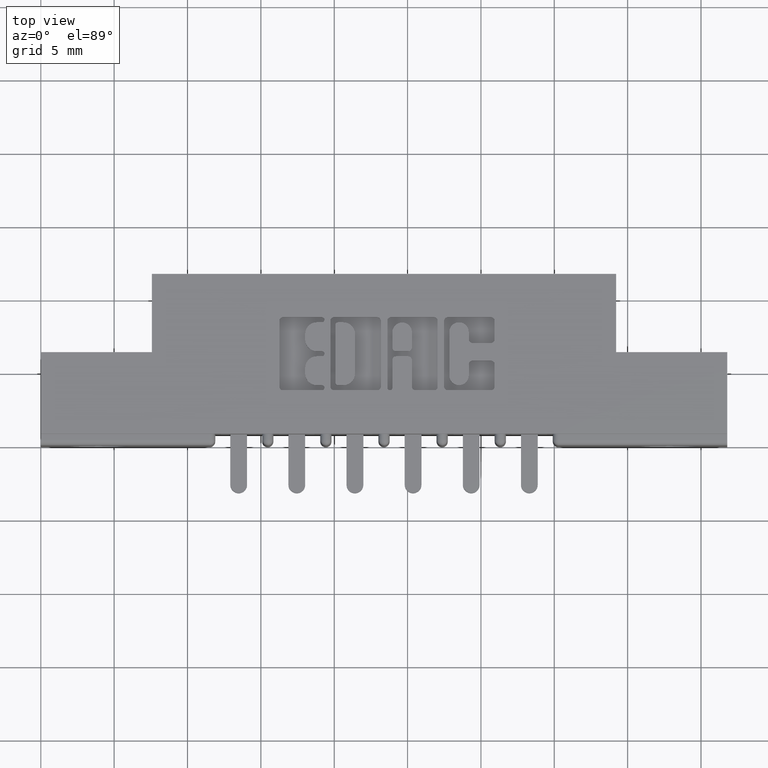
[diagram: clean part render]
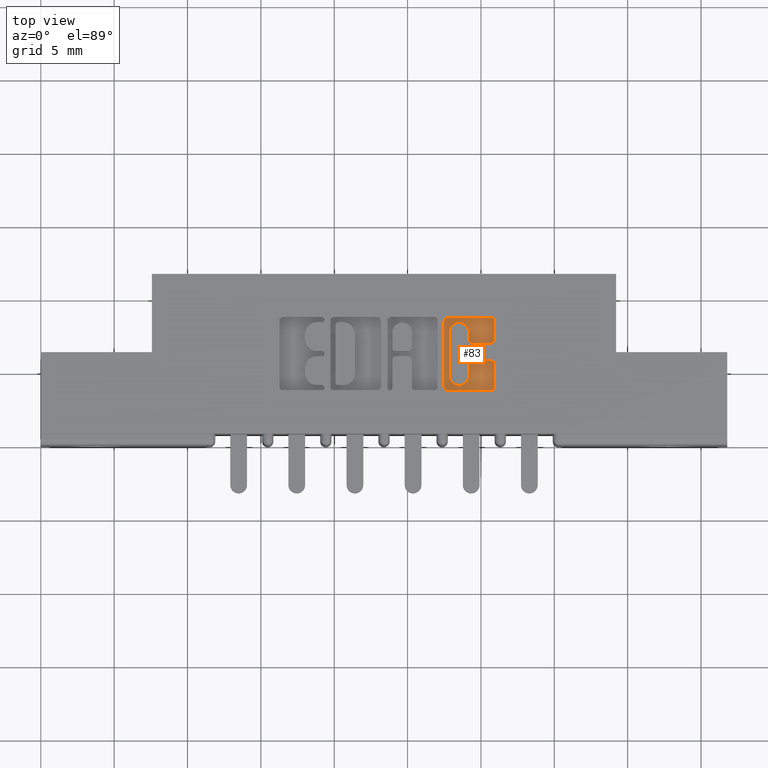
[diagram: same view with one face highlighted and labeled with its STEP entity id]
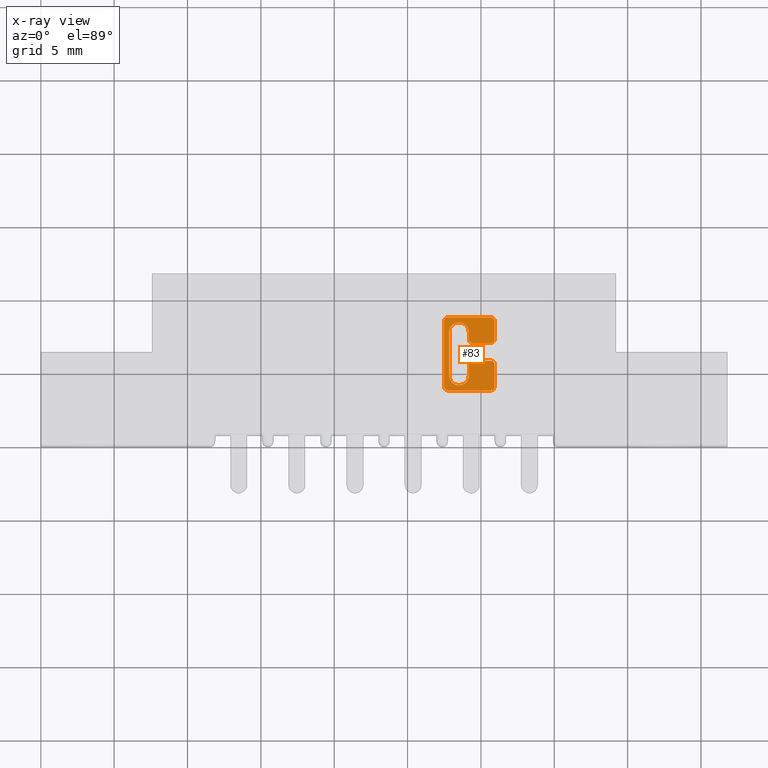
[diagram: x-ray of the same camera — body ghosted, the highlighted face saturated]
A machine part, top view. The second image highlights one B-rep face of the part: STEP entity #83.
The next image is the same camera in x-ray: the body ghosted, the highlighted face saturated — about 0% of this face is hidden behind the body in this view.
In plain terms, the highlighted planar face has unit normal (0, 0, 1).
Its self-contained STEP definition (entity closure, byte-faithful):
#19 = CARTESIAN_POINT ( 'NONE',  ( 1.082222383097458700, 0.3338410318342131000, -0.01000000000000000000 ) ) ;
#83 = ADVANCED_FACE ( 'NONE', ( #937 ), #6890, .T. ) ;
#126 = AXIS2_PLACEMENT_3D ( 'NONE', #6744, #1179, #381 ) ;
#132 = CIRCLE ( 'NONE', #8943, 0.02625691779517367100 ) ;
#195 = VECTOR ( 'NONE', #3073, 39.37007874015748100 ) ;
#381 = DIRECTION ( 'NONE',  ( 1.000000000000000000, 0.0000000000000000000, 0.0000000000000000000 ) ) ;
#706 = LINE ( 'NONE', #8245, #2575 ) ;
#937 = FACE_OUTER_BOUND ( 'NONE', #10017, .T. ) ;
#1121 = CARTESIAN_POINT ( 'NONE',  ( 1.148478156973165900, 0.2842718973050482000, -0.01000000000000000000 ) ) ;
#1179 = DIRECTION ( 'NONE',  ( -0.0000000000000000000, 0.0000000000000000000, 1.000000000000000000 ) ) ;
#1227 = CARTESIAN_POINT ( 'NONE',  ( 1.092038053301299400, 0.3338410318342131000, -0.01000000000000000000 ) ) ;
#1350 = EDGE_CURVE ( 'NONE', #11871, #8291, #3048, .T. ) ;
#1445 = EDGE_CURVE ( 'NONE', #3971, #6592, #9828, .T. ) ;
#1597 = VERTEX_POINT ( 'NONE', #11950 ) ;
#1608 = AXIS2_PLACEMENT_3D ( 'NONE', #5244, #2332, #5206 ) ;
#1677 = ORIENTED_EDGE ( 'NONE', *, *, #3145, .T. ) ;
#1750 = VERTEX_POINT ( 'NONE', #10198 ) ;
#1771 = VECTOR ( 'NONE', #6950, 39.37007874015748100 ) ;
#1878 = AXIS2_PLACEMENT_3D ( 'NONE', #1227, #8559, #9500 ) ;
#2047 = CARTESIAN_POINT ( 'NONE',  ( 1.217678631909940200, 0.0000000000000000000, -0.01000000000000000000 ) ) ;
#2103 = VERTEX_POINT ( 'NONE', #7295 ) ;
#2145 = EDGE_CURVE ( 'NONE', #2103, #9909, #11570, .T. ) ;
#2177 = VECTOR ( 'NONE', #8453, 39.37007874015748100 ) ;
#2194 = CARTESIAN_POINT ( 'NONE',  ( 0.0000000000000000000, 0.3436567020380540400, -0.01000000000000000000 ) ) ;
#2246 = CARTESIAN_POINT ( 'NONE',  ( 1.158293827176966900, 0.2170345564089725400, -0.01000000000000000000 ) ) ;
#2332 = DIRECTION ( 'NONE',  ( -0.0000000000000000000, 0.0000000000000000000, 1.000000000000000000 ) ) ;
#2365 = VECTOR ( 'NONE', #6825, 39.37007874015748100 ) ;
#2368 = EDGE_CURVE ( 'NONE', #1750, #5284, #3607, .T. ) ;
#2481 = CIRCLE ( 'NONE', #6602, 0.009815670203804980100 ) ;
#2575 = VECTOR ( 'NONE', #5510, 39.37007874015748100 ) ;
#2601 = DIRECTION ( 'NONE',  ( -0.0000000000000000000, 0.0000000000000000000, 1.000000000000000000 ) ) ;
#2725 = EDGE_CURVE ( 'NONE', #9079, #2103, #10852, .T. ) ;
#2768 = CARTESIAN_POINT ( 'NONE',  ( 0.0000000000000000000, 0.2268502266127605200, -0.01000000000000000000 ) ) ;
#2781 = ORIENTED_EDGE ( 'NONE', *, *, #6594, .T. ) ;
#2937 = CARTESIAN_POINT ( 'NONE',  ( 1.092038053301265200, 0.1571589681657929700, -0.01000000000000000000 ) ) ;
#2984 = ORIENTED_EDGE ( 'NONE', *, *, #1445, .T. ) ;
#3048 = LINE ( 'NONE', #10612, #1771 ) ;
#3072 = AXIS2_PLACEMENT_3D ( 'NONE', #10541, #5040, #11495 ) ;
#3073 = DIRECTION ( 'NONE',  ( -1.000000000000000000, 0.0000000000000000000, 0.0000000000000000000 ) ) ;
#3082 = CARTESIAN_POINT ( 'NONE',  ( 1.207862961706153100, 0.2170345564089734300, -0.01000000000000000000 ) ) ;
#3107 = CARTESIAN_POINT ( 'NONE',  ( 1.158293827176977400, 0.2744562271012366300, -0.01000000000000000000 ) ) ;
#3124 = DIRECTION ( 'NONE',  ( 0.0000000000000000000, -1.000000000000000000, 0.0000000000000000000 ) ) ;
#3145 = EDGE_CURVE ( 'NONE', #11551, #1750, #11296, .T. ) ;
#3162 = DIRECTION ( 'NONE',  ( -0.0000000000000000000, 0.0000000000000000000, 1.000000000000000000 ) ) ;
#3433 = CARTESIAN_POINT ( 'NONE',  ( 1.082222383097458700, 0.0000000000000000000, -0.01000000000000000000 ) ) ;
#3441 = EDGE_CURVE ( 'NONE', #6592, #7757, #10837, .T. ) ;
#3505 = ORIENTED_EDGE ( 'NONE', *, *, #5664, .T. ) ;
#3607 = CIRCLE ( 'NONE', #6370, 0.009815670203788042300 ) ;
#3706 = VERTEX_POINT ( 'NONE', #1121 ) ;
#3731 = DIRECTION ( 'NONE',  ( -0.0000000000000000000, 0.0000000000000000000, 1.000000000000000000 ) ) ;
#3770 = CARTESIAN_POINT ( 'NONE',  ( 1.207862961706167100, 0.2842718973050416500, -0.01000000000000000000 ) ) ;
#3889 = LINE ( 'NONE', #9967, #5341 ) ;
#3956 = ORIENTED_EDGE ( 'NONE', *, *, #5402, .T. ) ;
#3971 = VERTEX_POINT ( 'NONE', #19 ) ;
#4106 = CARTESIAN_POINT ( 'NONE',  ( 1.082222383097458700, 0.1571589681657929700, -0.01000000000000000000 ) ) ;
#4167 = CARTESIAN_POINT ( 'NONE',  ( 1.122221239177998700, 0.1873421540424559900, -0.01000000000000000000 ) ) ;
#4170 = CIRCLE ( 'NONE', #6936, 0.009815670203811535700 ) ;
#4247 = LINE ( 'NONE', #4616, #4553 ) ;
#4391 = VECTOR ( 'NONE', #3124, 39.37007874015748100 ) ;
#4417 = ORIENTED_EDGE ( 'NONE', *, *, #2368, .T. ) ;
#4461 = CARTESIAN_POINT ( 'NONE',  ( 1.158293827176977400, 0.2842718973050482000, -0.01000000000000000000 ) ) ;
#4507 = CARTESIAN_POINT ( 'NONE',  ( 1.207862961706156700, 0.2268502266127605200, -0.01000000000000000000 ) ) ;
#4553 = VECTOR ( 'NONE', #10235, 39.37007874015748100 ) ;
#4563 = VERTEX_POINT ( 'NONE', #5085 ) ;
#4616 = CARTESIAN_POINT ( 'NONE',  ( 0.0000000000000000000, 0.1473432979619861700, -0.01000000000000000000 ) ) ;
#4738 = CARTESIAN_POINT ( 'NONE',  ( 1.148478156973179000, 0.1873421540424559900, -0.01000000000000000000 ) ) ;
#4815 = DIRECTION ( 'NONE',  ( 1.000000000000000000, 0.0000000000000000000, 0.0000000000000000000 ) ) ;
#4847 = ORIENTED_EDGE ( 'NONE', *, *, #6286, .T. ) ;
#4952 = DIRECTION ( 'NONE',  ( 1.000000000000000000, 0.0000000000000000000, 0.0000000000000000000 ) ) ;
#5040 = DIRECTION ( 'NONE',  ( -0.0000000000000000000, 0.0000000000000000000, 1.000000000000000000 ) ) ;
#5085 = CARTESIAN_POINT ( 'NONE',  ( 1.148478156973165900, 0.3036578454992628900, -0.01000000000000000000 ) ) ;
#5109 = DIRECTION ( 'NONE',  ( -0.0000000000000000000, 0.0000000000000000000, 1.000000000000000000 ) ) ;
#5206 = DIRECTION ( 'NONE',  ( 1.000000000000000000, 0.0000000000000000000, 0.0000000000000000000 ) ) ;
#5244 = CARTESIAN_POINT ( 'NONE',  ( 0.0000000000000000000, 0.0000000000000000000, -0.01000000000000000000 ) ) ;
#5250 = ORIENTED_EDGE ( 'NONE', *, *, #5430, .T. ) ;
#5284 = VERTEX_POINT ( 'NONE', #8094 ) ;
#5341 = VECTOR ( 'NONE', #6393, 39.37007874015748100 ) ;
#5402 = EDGE_CURVE ( 'NONE', #3706, #7388, #4170, .T. ) ;
#5430 = EDGE_CURVE ( 'NONE', #7388, #11693, #3889, .T. ) ;
#5510 = DIRECTION ( 'NONE',  ( 0.0000000000000000000, -1.000000000000000000, 0.0000000000000000000 ) ) ;
#5664 = EDGE_CURVE ( 'NONE', #5284, #7644, #706, .T. ) ;
#5717 = CARTESIAN_POINT ( 'NONE',  ( 1.095964321382818300, 0.3036578459575325900, -0.01000000000000000000 ) ) ;
#5902 = EDGE_CURVE ( 'NONE', #4563, #8291, #132, .T. ) ;
#5916 = DIRECTION ( 'NONE',  ( -0.0000000000000000000, 0.0000000000000000000, 1.000000000000000000 ) ) ;
#5979 = CARTESIAN_POINT ( 'NONE',  ( 1.217678631909972200, 0.0000000000000000000, -0.01000000000000000000 ) ) ;
#5993 = CARTESIAN_POINT ( 'NONE',  ( 1.092038053301299400, 0.3436567020380540400, -0.01000000000000000000 ) ) ;
#6238 = ORIENTED_EDGE ( 'NONE', *, *, #6537, .T. ) ;
#6286 = EDGE_CURVE ( 'NONE', #1597, #7094, #9634, .T. ) ;
#6370 = AXIS2_PLACEMENT_3D ( 'NONE', #2246, #3162, #9627 ) ;
#6393 = DIRECTION ( 'NONE',  ( 1.000000000000000000, 0.0000000000000000000, 0.0000000000000000000 ) ) ;
#6537 = EDGE_CURVE ( 'NONE', #9909, #11551, #9769, .T. ) ;
#6565 = LINE ( 'NONE', #10431, #4391 ) ;
#6589 = ORIENTED_EDGE ( 'NONE', *, *, #2725, .T. ) ;
#6592 = VERTEX_POINT ( 'NONE', #4106 ) ;
#6594 = EDGE_CURVE ( 'NONE', #7094, #11253, #6746, .T. ) ;
#6602 = AXIS2_PLACEMENT_3D ( 'NONE', #3770, #3731, #10179 ) ;
#6677 = VECTOR ( 'NONE', #10724, 39.37007874015748100 ) ;
#6744 = CARTESIAN_POINT ( 'NONE',  ( 1.207862961706134300, 0.1571589681657929700, -0.01000000000000000000 ) ) ;
#6746 = CIRCLE ( 'NONE', #3072, 0.009815670203840084000 ) ;
#6757 = CARTESIAN_POINT ( 'NONE',  ( 1.095964321382818300, 0.1873421540424559900, -0.01000000000000000000 ) ) ;
#6791 = AXIS2_PLACEMENT_3D ( 'NONE', #3082, #5916, #11409 ) ;
#6825 = DIRECTION ( 'NONE',  ( -1.000000000000000000, 0.0000000000000000000, 0.0000000000000000000 ) ) ;
#6890 = PLANE ( 'NONE',  #1608 ) ;
#6936 = AXIS2_PLACEMENT_3D ( 'NONE', #4461, #2601, #7198 ) ;
#6950 = DIRECTION ( 'NONE',  ( 0.0000000000000000000, 1.000000000000000000, -0.0000000000000000000 ) ) ;
#7077 = EDGE_CURVE ( 'NONE', #11871, #7644, #11790, .T. ) ;
#7094 = VERTEX_POINT ( 'NONE', #11443 ) ;
#7198 = DIRECTION ( 'NONE',  ( 1.000000000000000000, 0.0000000000000000000, 0.0000000000000000000 ) ) ;
#7204 = ORIENTED_EDGE ( 'NONE', *, *, #10590, .T. ) ;
#7295 = CARTESIAN_POINT ( 'NONE',  ( 1.217678631909940200, 0.1571589681657859800, -0.01000000000000000000 ) ) ;
#7309 = AXIS2_PLACEMENT_3D ( 'NONE', #2937, #10310, #4815 ) ;
#7311 = DIRECTION ( 'NONE',  ( 1.000000000000000000, 0.0000000000000000000, 0.0000000000000000000 ) ) ;
#7388 = VERTEX_POINT ( 'NONE', #3107 ) ;
#7526 = CIRCLE ( 'NONE', #1878, 0.009815670203840902800 ) ;
#7633 = EDGE_CURVE ( 'NONE', #7757, #9079, #4247, .T. ) ;
#7644 = VERTEX_POINT ( 'NONE', #4738 ) ;
#7757 = VERTEX_POINT ( 'NONE', #8505 ) ;
#7788 = AXIS2_PLACEMENT_3D ( 'NONE', #4167, #5109, #4952 ) ;
#8094 = CARTESIAN_POINT ( 'NONE',  ( 1.148478156973179000, 0.2170345564089716800, -0.01000000000000000000 ) ) ;
#8115 = CARTESIAN_POINT ( 'NONE',  ( 1.207862961706134300, 0.1473432979619861700, -0.01000000000000000000 ) ) ;
#8245 = CARTESIAN_POINT ( 'NONE',  ( 1.148478156973179000, 0.0000000000000000000, -0.01000000000000000000 ) ) ;
#8291 = VERTEX_POINT ( 'NONE', #5717 ) ;
#8360 = CARTESIAN_POINT ( 'NONE',  ( 1.207862961706167100, 0.2744562271012366300, -0.01000000000000000000 ) ) ;
#8395 = ORIENTED_EDGE ( 'NONE', *, *, #3441, .T. ) ;
#8453 = DIRECTION ( 'NONE',  ( 0.0000000000000000000, 1.000000000000000000, -0.0000000000000000000 ) ) ;
#8505 = CARTESIAN_POINT ( 'NONE',  ( 1.092038053301265200, 0.1473432979619861700, -0.01000000000000000000 ) ) ;
#8559 = DIRECTION ( 'NONE',  ( -0.0000000000000000000, 0.0000000000000000000, 1.000000000000000000 ) ) ;
#8665 = ORIENTED_EDGE ( 'NONE', *, *, #7077, .F. ) ;
#8758 = ORIENTED_EDGE ( 'NONE', *, *, #11881, .T. ) ;
#8943 = AXIS2_PLACEMENT_3D ( 'NONE', #11053, #9123, #7311 ) ;
#9079 = VERTEX_POINT ( 'NONE', #8115 ) ;
#9123 = DIRECTION ( 'NONE',  ( -0.0000000000000000000, 0.0000000000000000000, 1.000000000000000000 ) ) ;
#9147 = CARTESIAN_POINT ( 'NONE',  ( 1.217678631909940200, 0.2170345564089734300, -0.01000000000000000000 ) ) ;
#9292 = LINE ( 'NONE', #2194, #2365 ) ;
#9500 = DIRECTION ( 'NONE',  ( 1.000000000000000000, 0.0000000000000000000, 0.0000000000000000000 ) ) ;
#9627 = DIRECTION ( 'NONE',  ( 1.000000000000000000, 0.0000000000000000000, 0.0000000000000000000 ) ) ;
#9634 = LINE ( 'NONE', #5979, #11377 ) ;
#9769 = CIRCLE ( 'NONE', #6791, 0.009815670203787086500 ) ;
#9828 = LINE ( 'NONE', #3433, #6677 ) ;
#9909 = VERTEX_POINT ( 'NONE', #9147 ) ;
#9967 = CARTESIAN_POINT ( 'NONE',  ( 0.0000000000000000000, 0.2744562271012366300, -0.01000000000000000000 ) ) ;
#10017 = EDGE_LOOP ( 'NONE', ( #5250, #11317, #4847, #2781, #7204, #8758, #2984, #8395, #10210, #6589, #10333, #6238, #1677, #4417, #3505, #8665, #11353, #11208, #10215, #3956 ) ) ;
#10149 = EDGE_CURVE ( 'NONE', #4563, #3706, #6565, .T. ) ;
#10179 = DIRECTION ( 'NONE',  ( 1.000000000000000000, 0.0000000000000000000, 0.0000000000000000000 ) ) ;
#10198 = CARTESIAN_POINT ( 'NONE',  ( 1.158293827176966900, 0.2268502266127605200, -0.01000000000000000000 ) ) ;
#10210 = ORIENTED_EDGE ( 'NONE', *, *, #7633, .T. ) ;
#10215 = ORIENTED_EDGE ( 'NONE', *, *, #10149, .T. ) ;
#10235 = DIRECTION ( 'NONE',  ( 1.000000000000000000, 0.0000000000000000000, 0.0000000000000000000 ) ) ;
#10310 = DIRECTION ( 'NONE',  ( -0.0000000000000000000, 0.0000000000000000000, 1.000000000000000000 ) ) ;
#10333 = ORIENTED_EDGE ( 'NONE', *, *, #2145, .T. ) ;
#10431 = CARTESIAN_POINT ( 'NONE',  ( 1.148478156973165900, 0.0000000000000000000, -0.01000000000000000000 ) ) ;
#10541 = CARTESIAN_POINT ( 'NONE',  ( 1.207862961706132100, 0.3338410318342139900, -0.01000000000000000000 ) ) ;
#10590 = EDGE_CURVE ( 'NONE', #11253, #10651, #9292, .T. ) ;
#10612 = CARTESIAN_POINT ( 'NONE',  ( 1.095964321382818300, 0.0000000000000000000, -0.01000000000000000000 ) ) ;
#10651 = VERTEX_POINT ( 'NONE', #5993 ) ;
#10674 = DIRECTION ( 'NONE',  ( 0.0000000000000000000, 1.000000000000000000, -0.0000000000000000000 ) ) ;
#10724 = DIRECTION ( 'NONE',  ( 0.0000000000000000000, -1.000000000000000000, 0.0000000000000000000 ) ) ;
#10837 = CIRCLE ( 'NONE', #7309, 0.009815670203806754800 ) ;
#10852 = CIRCLE ( 'NONE', #126, 0.009815670203806345400 ) ;
#11053 = CARTESIAN_POINT ( 'NONE',  ( 1.122221239177992200, 0.3036578459575325900, -0.01000000000000000000 ) ) ;
#11208 = ORIENTED_EDGE ( 'NONE', *, *, #5902, .F. ) ;
#11253 = VERTEX_POINT ( 'NONE', #11454 ) ;
#11296 = LINE ( 'NONE', #2768, #195 ) ;
#11317 = ORIENTED_EDGE ( 'NONE', *, *, #11666, .T. ) ;
#11353 = ORIENTED_EDGE ( 'NONE', *, *, #1350, .T. ) ;
#11377 = VECTOR ( 'NONE', #10674, 39.37007874015748100 ) ;
#11409 = DIRECTION ( 'NONE',  ( 1.000000000000000000, 0.0000000000000000000, 0.0000000000000000000 ) ) ;
#11443 = CARTESIAN_POINT ( 'NONE',  ( 1.217678631909972200, 0.3338410318341977800, -0.01000000000000000000 ) ) ;
#11454 = CARTESIAN_POINT ( 'NONE',  ( 1.207862961706168200, 0.3436567020380540400, -0.01000000000000000000 ) ) ;
#11495 = DIRECTION ( 'NONE',  ( 1.000000000000000000, 0.0000000000000000000, 0.0000000000000000000 ) ) ;
#11551 = VERTEX_POINT ( 'NONE', #4507 ) ;
#11570 = LINE ( 'NONE', #2047, #2177 ) ;
#11666 = EDGE_CURVE ( 'NONE', #11693, #1597, #2481, .T. ) ;
#11693 = VERTEX_POINT ( 'NONE', #8360 ) ;
#11790 = CIRCLE ( 'NONE', #7788, 0.02625691779518022500 ) ;
#11871 = VERTEX_POINT ( 'NONE', #6757 ) ;
#11881 = EDGE_CURVE ( 'NONE', #10651, #3971, #7526, .T. ) ;
#11950 = CARTESIAN_POINT ( 'NONE',  ( 1.217678631909972200, 0.2842718973050416500, -0.01000000000000000000 ) ) ;